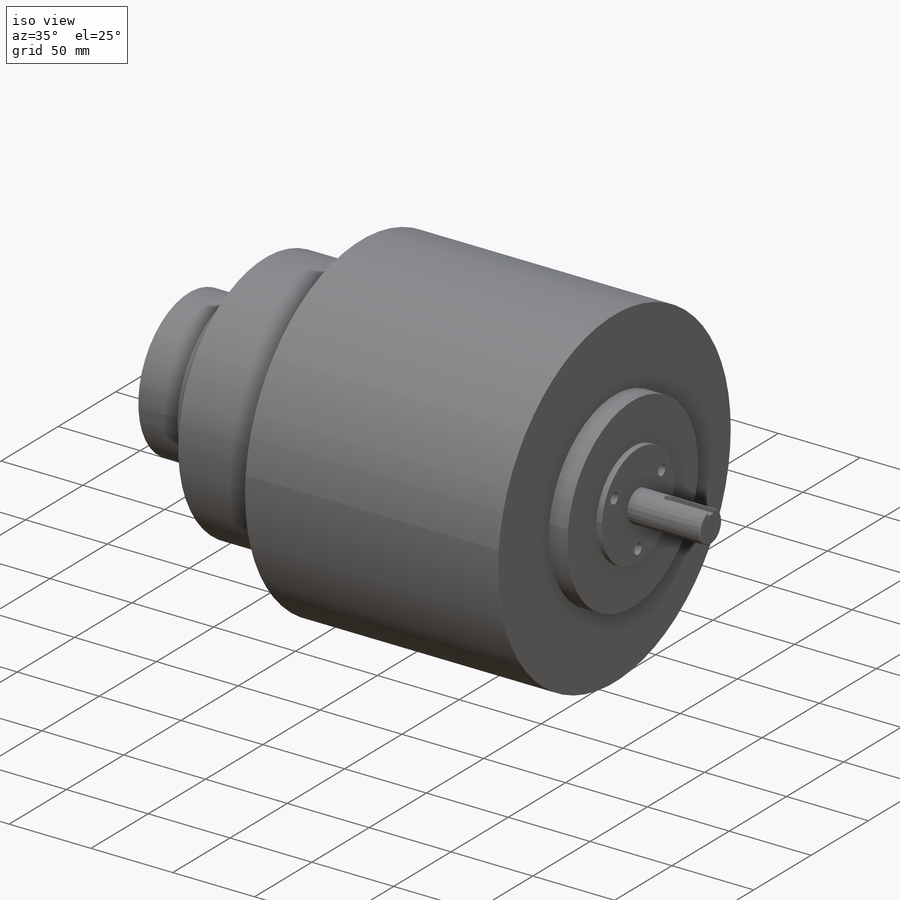
[diagram: iso view]
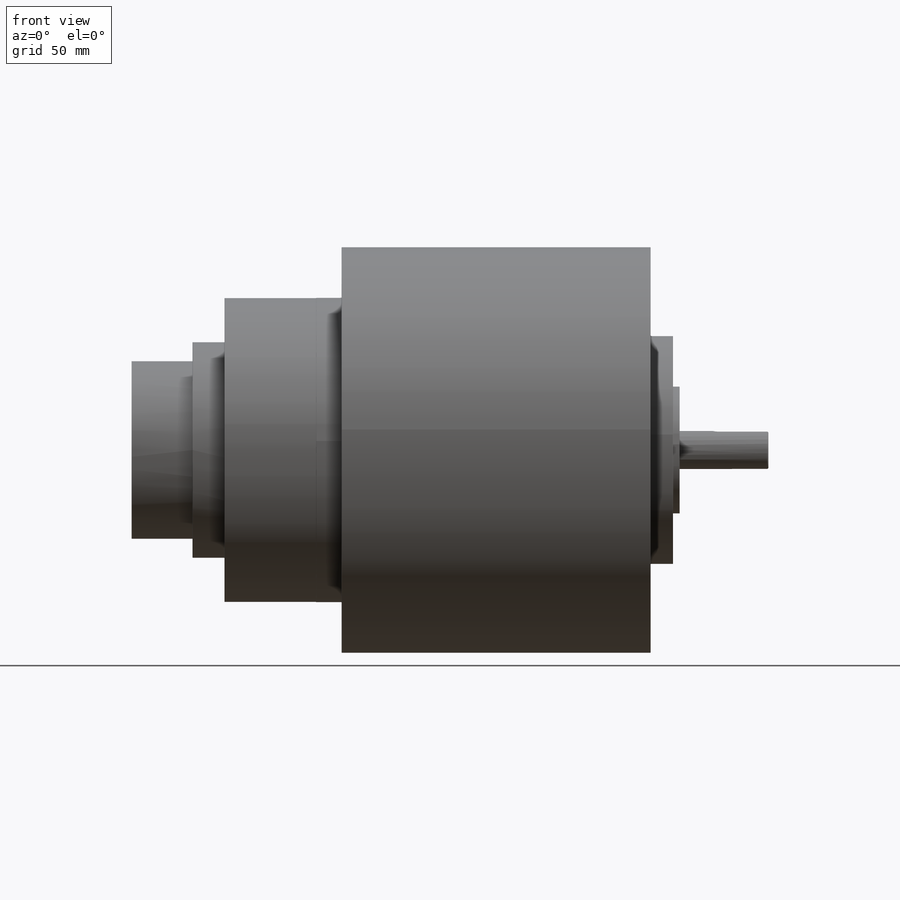
[diagram: front view]
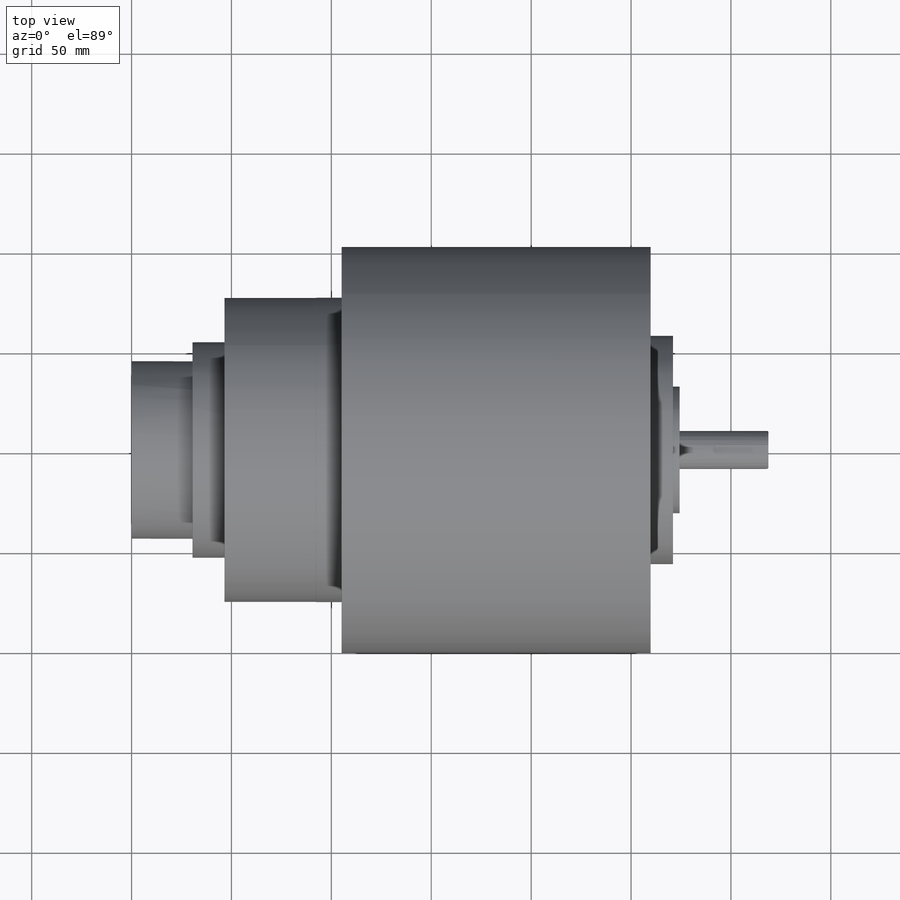
[diagram: top view]
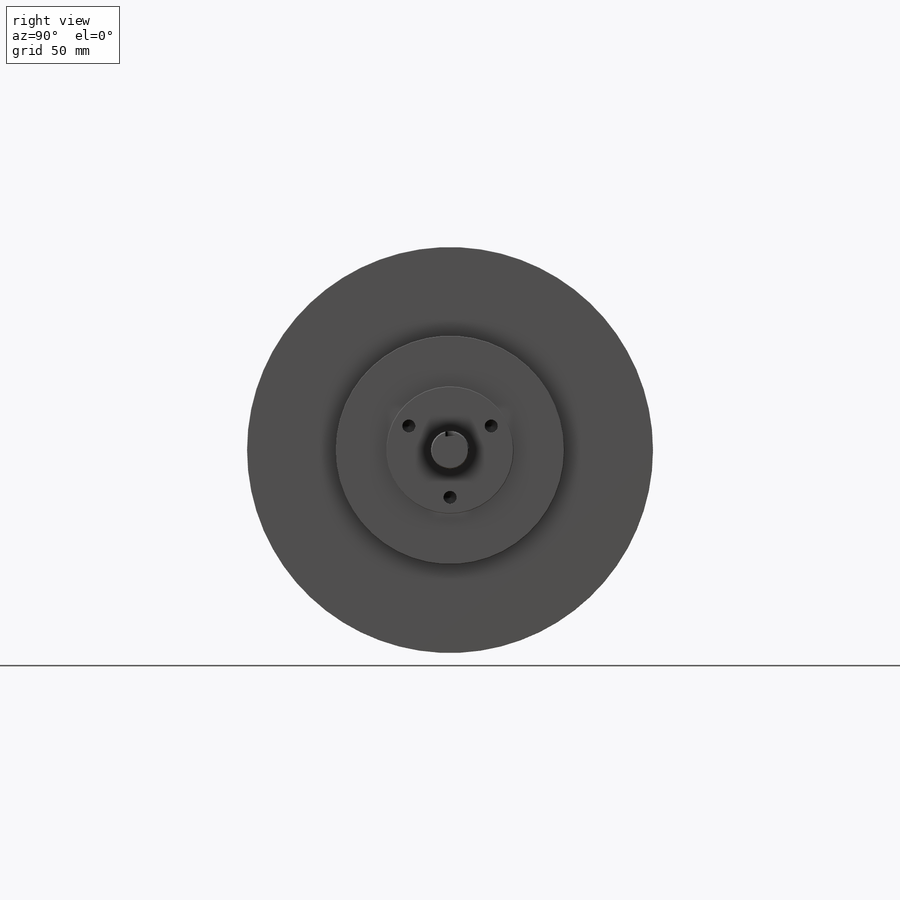
[diagram: right view]
SOLIDWORKS PART (.sldprt)
format: sldprt  version: not decoded by parser v0  size: 515,072 bytes
history: native  units: mm
features: sketch x14, plane x9, extrude x6, cut_extrude x4, hole x2, thread x2, pattern_circular x2, material x1, fillet x1, chamfer x1 (+16 scaffold rows collapsed)
feature tree (58):
  scaffold x16  (default folders/planes/origin — collapsed)
  material  "Material <not specified>"
  plane  "A"  Offset=318.77mm
  plane  "F"  Offset=46.482mm
  sketch  "E"  dims[D1=107.95mm]
  extrude  "Boss-Extrude1"  [1 undecoded]
  sketch  "X"  dims[D2=88.9mm D1=0.0mm]
  cut_extrude  "Z"  Depth=30.5054mm
  plane  "G"  Offset=58.674mm
  sketch  "D"  dims[D1=152.4mm]
  extrude  "Boss-Extrude2"  [1 undecoded]
  plane  "J"  Offset=12.7mm
  sketch  "Sketch5"  dims[D1=0.127mm]
  cut_extrude  "Cut-Extrude3"  [1 undecoded]
  plane  "H"  Offset=154.686mm
  sketch  "C"  dims[D1=203.2mm]
  extrude  "Boss-Extrude3"  [1 undecoded]
  sketch  "B"  dims[D1=80.01mm]
  cut_extrude  "P"  Depth=101.6mm
  plane  "L"  Offset=11.176mm
  sketch  "M"  dims[D1=114.3mm]
  extrude  "Boss-Extrude4"  [1 undecoded]
  plane  "K"  Offset=3.302mm
  sketch  "N"  dims[D1=63.5mm]
  extrude  "Boss-Extrude5"  [1 undecoded]
  sketch  "S"  dims[D1=19.05mm]
  extrude  "Boss-Extrude6"  [1 undecoded]
  hole  "W"  Diameter=7.9375mm Depth=26.924mm
  sketch  "WBCD"  dims[D1=177.8mm]
  sketch  "Sketch10"  dims[hole-wizard template sketch: 50 standard entries collapsed; hole parameters above]
  thread  "Hole Thread1"  Diameter=19.05mm  [1 undecoded]
  pattern_circular  "CirPattern1"  Count=6 Angle=360deg
  hole  "Y"  Diameter=6.5278mm Depth=23.114mm
  sketch  "YBCD"  dims[D1=19.05mm D2=47.625mm]
  sketch  "Sketch12"  dims[hole-wizard template sketch: 47 standard entries collapsed; hole parameters kept: c15.Tap Drill Depth=23.114mm c15.D3=~14.816244mm c15.Drill Angle=118.0deg]
  thread  "Hole Thread2"  Diameter=16.002mm  [1 undecoded]
  pattern_circular  "CirPattern2"  Count=3 Angle=360deg
  plane  "Plane8"
  plane  "keyway depth"  Offset=2.6924mm
  sketch  "T"  dims[D1=4.7752mm D2=25.4mm]
  cut_extrude  "KEYWAY"  [1 undecoded]
  fillet  "Fillet1"  Radius=0.127mm
  chamfer  "Chamfer1"  Distance=0.508mm Angle=45deg
decode coverage: 24 of 32 modeling features carry decoded parameters
note: ~ marks probable driven/reference dimensions
note: 10 parameter values undecoded
summary: no parameter record found for 8 features
note: suppression state not decoded; provenance and decode notes live in map.json
